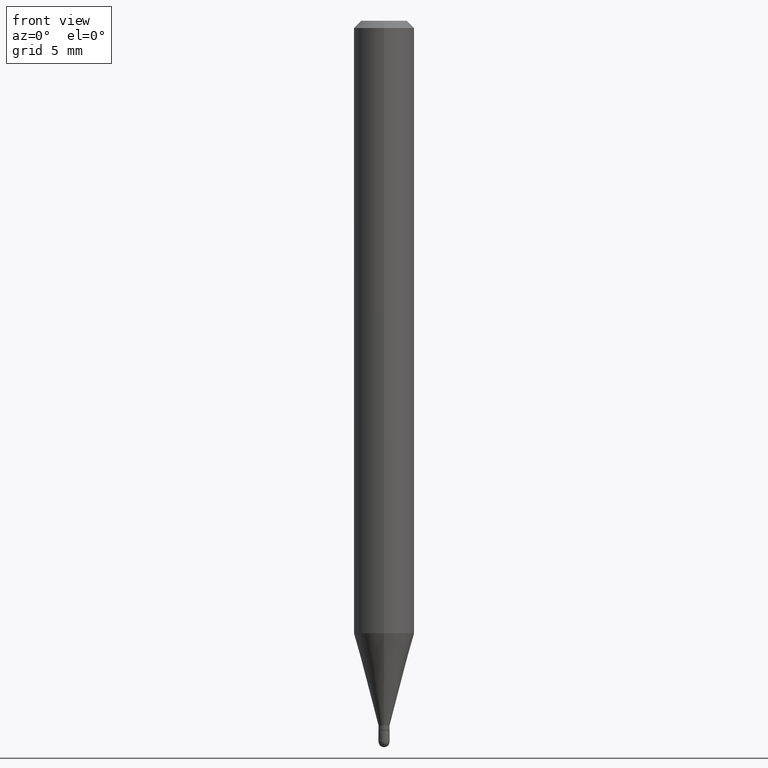
[diagram: clean part render]
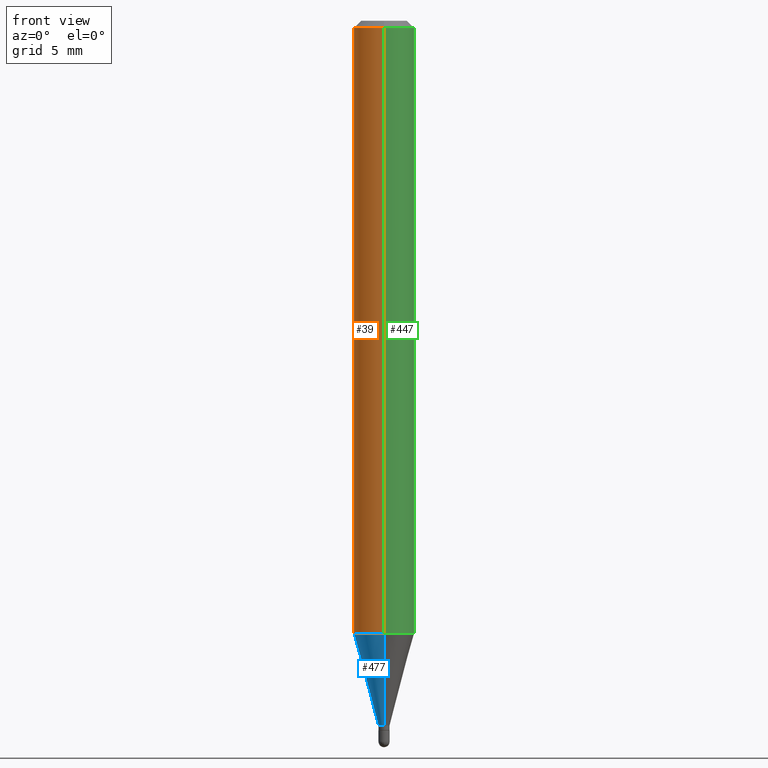
[diagram: same view with three faces highlighted in distinct colors, each labeled with its STEP entity id]
A machine part, front view with three faces highlighted in distinct colors.
Their STEP definitions:

[orange] entity #39 — the highlighted cylindrical surface (edge-blend (fillet) strip) has radius 1.5875 mm, axis along (-0, 0, 1).
#19 = AXIS2_PLACEMENT_3D ( 'NONE', #390, #43, #205 ) ;
#29 = CARTESIAN_POINT ( 'NONE',  ( 4.440892098500625669E-16, 0.06250000000000000000, -2.182181502393698939E-16 ) ) ;
#31 = DIRECTION ( 'NONE',  ( -6.982962677686265922E-15, -1.000000000000000000, 4.370956789862821150E-15 ) ) ;
#39 = ADVANCED_FACE ( 'NONE', ( #433 ), #86, .T. ) ;
#42 = CARTESIAN_POINT ( 'NONE',  ( -4.364351673553916201E-16, -0.06250000000000000000, 2.182181502393698939E-16 ) ) ;
#43 = DIRECTION ( 'NONE',  ( -2.445462476138705994E-29, 3.491490403829918303E-15, 1.000000000000000000 ) ) ;
#75 = CARTESIAN_POINT ( 'NONE',  ( -4.364351673553912750E-16, -0.06250000000000005551, -0.01499999999999979128 ) ) ;
#86 = CYLINDRICAL_SURFACE ( 'NONE', #19, 0.06250000000000000000 ) ;
#88 = CIRCLE ( 'NONE', #126, 0.06250000000000000000 ) ;
#103 = VERTEX_POINT ( 'NONE', #340 ) ;
#107 = EDGE_CURVE ( 'NONE', #404, #103, #422, .T. ) ;
#126 = AXIS2_PLACEMENT_3D ( 'NONE', #234, #378, #31 ) ;
#129 = CARTESIAN_POINT ( 'NONE',  ( 4.440892098500932831E-16, 0.06249999999999557992, -1.264665408813988146 ) ) ;
#133 = CIRCLE ( 'NONE', #507, 0.06250000000000000000 ) ;
#147 = CARTESIAN_POINT ( 'NONE',  ( 3.668193714208060812E-31, -5.237235605744880487E-17, -0.01500000000000000812 ) ) ;
#152 = DIRECTION ( 'NONE',  ( -2.445462476138705994E-29, 3.491490403829918303E-15, 1.000000000000000000 ) ) ;
#164 = EDGE_CURVE ( 'NONE', #103, #190, #133, .T. ) ;
#190 = VERTEX_POINT ( 'NONE', #75 ) ;
#195 = EDGE_CURVE ( 'NONE', #404, #336, #88, .T. ) ;
#205 = DIRECTION ( 'NONE',  ( -6.982962677686265922E-15, -1.000000000000000000, 3.491490403829918303E-15 ) ) ;
#234 = CARTESIAN_POINT ( 'NONE',  ( 3.092691802125223590E-29, -4.415567138929678852E-15, -1.264665408813987924 ) ) ;
#236 = DIRECTION ( 'NONE',  ( -6.982962677686265922E-15, -1.000000000000000000, 3.483106191921935554E-15 ) ) ;
#246 = VECTOR ( 'NONE', #152, 39.37007874015748143 ) ;
#248 = CARTESIAN_POINT ( 'NONE',  ( -4.364351673553607559E-16, -0.06250000000000441314, -1.264665408813987479 ) ) ;
#329 = EDGE_CURVE ( 'NONE', #336, #190, #389, .T. ) ;
#336 = VERTEX_POINT ( 'NONE', #248 ) ;
#340 = CARTESIAN_POINT ( 'NONE',  ( 4.440892098500936776E-16, 0.06249999999999993755, -0.01500000000000022669 ) ) ;
#344 = DIRECTION ( 'NONE',  ( -2.445462476138705994E-29, 3.491490403829918303E-15, 1.000000000000000000 ) ) ;
#347 = DIRECTION ( 'NONE',  ( -2.445462476138705994E-29, 3.491490403829918303E-15, 1.000000000000000000 ) ) ;
#362 = EDGE_LOOP ( 'NONE', ( #510, #367, #429, #458 ) ) ;
#367 = ORIENTED_EDGE ( 'NONE', *, *, #195, .T. ) ;
#378 = DIRECTION ( 'NONE',  ( -2.445462476138705994E-29, 3.491490403829918303E-15, 1.000000000000000000 ) ) ;
#389 = LINE ( 'NONE', #42, #400 ) ;
#390 = CARTESIAN_POINT ( 'NONE',  ( 0.000000000000000000, 0.000000000000000000, 0.000000000000000000 ) ) ;
#400 = VECTOR ( 'NONE', #347, 39.37007874015748143 ) ;
#404 = VERTEX_POINT ( 'NONE', #129 ) ;
#422 = LINE ( 'NONE', #29, #246 ) ;
#429 = ORIENTED_EDGE ( 'NONE', *, *, #329, .T. ) ;
#433 = FACE_OUTER_BOUND ( 'NONE', #362, .T. ) ;
#458 = ORIENTED_EDGE ( 'NONE', *, *, #164, .F. ) ;
#507 = AXIS2_PLACEMENT_3D ( 'NONE', #147, #344, #236 ) ;
#510 = ORIENTED_EDGE ( 'NONE', *, *, #107, .F. ) ;

[blue] entity #477 — the highlighted conical surface has half-angle 15 deg.
#5 = DIRECTION ( 'NONE',  ( 1.839019923739600710E-15, 0.2588190451025250138, 0.9659258262890670910 ) ) ;
#11 = VERTEX_POINT ( 'NONE', #237 ) ;
#15 = EDGE_CURVE ( 'NONE', #11, #404, #307, .T. ) ;
#17 = CARTESIAN_POINT ( 'NONE',  ( 3.558147902781818147E-29, -5.080118537572531884E-15, -1.455000000000000293 ) ) ;
#31 = DIRECTION ( 'NONE',  ( -6.982962677686265922E-15, -1.000000000000000000, 4.370956789862821150E-15 ) ) ;
#57 = DIRECTION ( 'NONE',  ( -2.445462476138705994E-29, 3.491490403829918303E-15, 1.000000000000000000 ) ) ;
#83 = EDGE_CURVE ( 'NONE', #494, #336, #232, .T. ) ;
#88 = CIRCLE ( 'NONE', #126, 0.06250000000000000000 ) ;
#114 = CARTESIAN_POINT ( 'NONE',  ( -8.030407079335594572E-17, -0.01150000000000500275, -1.455000000000000293 ) ) ;
#123 = CARTESIAN_POINT ( 'NONE',  ( 8.171241461244653802E-17, 0.01149999999999484421, -1.455000000000000293 ) ) ;
#126 = AXIS2_PLACEMENT_3D ( 'NONE', #234, #378, #31 ) ;
#129 = CARTESIAN_POINT ( 'NONE',  ( 4.440892098500932831E-16, 0.06249999999999557992, -1.264665408813988146 ) ) ;
#156 = ORIENTED_EDGE ( 'NONE', *, *, #83, .T. ) ;
#159 = ORIENTED_EDGE ( 'NONE', *, *, #15, .F. ) ;
#194 = CARTESIAN_POINT ( 'NONE',  ( 3.558147902781818147E-29, -5.080118537572531884E-15, -1.455000000000000293 ) ) ;
#195 = EDGE_CURVE ( 'NONE', #404, #336, #88, .T. ) ;
#208 = EDGE_CURVE ( 'NONE', #11, #494, #313, .T. ) ;
#232 = LINE ( 'NONE', #114, #353 ) ;
#234 = CARTESIAN_POINT ( 'NONE',  ( 3.092691802125223590E-29, -4.415567138929678852E-15, -1.264665408813987924 ) ) ;
#237 = CARTESIAN_POINT ( 'NONE',  ( 2.629008122312701386E-16, 0.01149999999999484421, -1.455000000000000293 ) ) ;
#242 = ORIENTED_EDGE ( 'NONE', *, *, #195, .F. ) ;
#244 = ORIENTED_EDGE ( 'NONE', *, *, #208, .T. ) ;
#248 = CARTESIAN_POINT ( 'NONE',  ( -4.364351673553607559E-16, -0.06250000000000441314, -1.264665408813987479 ) ) ;
#256 = FACE_OUTER_BOUND ( 'NONE', #386, .T. ) ;
#257 = DIRECTION ( 'NONE',  ( -6.982962677686265133E-15, -1.000000000000000000, 0.000000000000000000 ) ) ;
#270 = DIRECTION ( 'NONE',  ( -2.445462476138705994E-29, 3.491490403829918303E-15, 1.000000000000000000 ) ) ;
#272 = DIRECTION ( 'NONE',  ( -1.807323732225330534E-15, -0.2588190451025182415, 0.9659258262890689783 ) ) ;
#307 = LINE ( 'NONE', #123, #442 ) ;
#311 = AXIS2_PLACEMENT_3D ( 'NONE', #17, #57, #257 ) ;
#313 = CIRCLE ( 'NONE', #461, 0.01149999999999992348 ) ;
#336 = VERTEX_POINT ( 'NONE', #248 ) ;
#353 = VECTOR ( 'NONE', #272, 39.37007874015748143 ) ;
#364 = CONICAL_SURFACE ( 'NONE', #311, 0.01149999999999992348, 0.2617993877991502960 ) ;
#378 = DIRECTION ( 'NONE',  ( -2.445462476138705994E-29, 3.491490403829918303E-15, 1.000000000000000000 ) ) ;
#386 = EDGE_LOOP ( 'NONE', ( #159, #244, #156, #242 ) ) ;
#396 = CARTESIAN_POINT ( 'NONE',  ( -8.030407079335594572E-17, -0.01150000000000500275, -1.455000000000000293 ) ) ;
#404 = VERTEX_POINT ( 'NONE', #129 ) ;
#424 = DIRECTION ( 'NONE',  ( -6.982962677686265133E-15, -1.000000000000000000, 0.000000000000000000 ) ) ;
#442 = VECTOR ( 'NONE', #5, 39.37007874015748143 ) ;
#461 = AXIS2_PLACEMENT_3D ( 'NONE', #194, #270, #424 ) ;
#477 = ADVANCED_FACE ( 'NONE', ( #256 ), #364, .T. ) ;
#494 = VERTEX_POINT ( 'NONE', #396 ) ;

[green] entity #447 — the highlighted cylindrical surface (edge-blend (fillet) strip) has radius 1.5875 mm, axis along (-0, 0, 1).
#29 = CARTESIAN_POINT ( 'NONE',  ( 4.440892098500625669E-16, 0.06250000000000000000, -2.182181502393698939E-16 ) ) ;
#42 = CARTESIAN_POINT ( 'NONE',  ( -4.364351673553916201E-16, -0.06250000000000000000, 2.182181502393698939E-16 ) ) ;
#45 = CIRCLE ( 'NONE', #435, 0.06250000000000000000 ) ;
#49 = CARTESIAN_POINT ( 'NONE',  ( 0.000000000000000000, 0.000000000000000000, 0.000000000000000000 ) ) ;
#75 = CARTESIAN_POINT ( 'NONE',  ( -4.364351673553912750E-16, -0.06250000000000005551, -0.01499999999999979128 ) ) ;
#103 = VERTEX_POINT ( 'NONE', #340 ) ;
#107 = EDGE_CURVE ( 'NONE', #404, #103, #422, .T. ) ;
#122 = DIRECTION ( 'NONE',  ( -2.445462476138705994E-29, 3.491490403829918303E-15, 1.000000000000000000 ) ) ;
#129 = CARTESIAN_POINT ( 'NONE',  ( 4.440892098500932831E-16, 0.06249999999999557992, -1.264665408813988146 ) ) ;
#152 = DIRECTION ( 'NONE',  ( -2.445462476138705994E-29, 3.491490403829918303E-15, 1.000000000000000000 ) ) ;
#165 = DIRECTION ( 'NONE',  ( -2.445462476138705994E-29, 3.491490403829918303E-15, 1.000000000000000000 ) ) ;
#168 = DIRECTION ( 'NONE',  ( -6.982962677686265922E-15, -1.000000000000000000, 3.483106191921935554E-15 ) ) ;
#171 = DIRECTION ( 'NONE',  ( -2.445462476138705994E-29, 3.491490403829918303E-15, 1.000000000000000000 ) ) ;
#185 = CIRCLE ( 'NONE', #196, 0.06250000000000000000 ) ;
#190 = VERTEX_POINT ( 'NONE', #75 ) ;
#196 = AXIS2_PLACEMENT_3D ( 'NONE', #203, #165, #316 ) ;
#199 = ORIENTED_EDGE ( 'NONE', *, *, #345, .T. ) ;
#203 = CARTESIAN_POINT ( 'NONE',  ( 3.092691802125223590E-29, -4.415567138929678852E-15, -1.264665408813987924 ) ) ;
#241 = EDGE_CURVE ( 'NONE', #190, #103, #45, .T. ) ;
#246 = VECTOR ( 'NONE', #152, 39.37007874015748143 ) ;
#248 = CARTESIAN_POINT ( 'NONE',  ( -4.364351673553607559E-16, -0.06250000000000441314, -1.264665408813987479 ) ) ;
#286 = ORIENTED_EDGE ( 'NONE', *, *, #241, .F. ) ;
#316 = DIRECTION ( 'NONE',  ( -6.982962677686265922E-15, -1.000000000000000000, 4.370956789862821150E-15 ) ) ;
#328 = CYLINDRICAL_SURFACE ( 'NONE', #451, 0.06250000000000000000 ) ;
#329 = EDGE_CURVE ( 'NONE', #336, #190, #389, .T. ) ;
#336 = VERTEX_POINT ( 'NONE', #248 ) ;
#340 = CARTESIAN_POINT ( 'NONE',  ( 4.440892098500936776E-16, 0.06249999999999993755, -0.01500000000000022669 ) ) ;
#345 = EDGE_CURVE ( 'NONE', #336, #404, #185, .T. ) ;
#347 = DIRECTION ( 'NONE',  ( -2.445462476138705994E-29, 3.491490403829918303E-15, 1.000000000000000000 ) ) ;
#359 = FACE_OUTER_BOUND ( 'NONE', #470, .T. ) ;
#361 = DIRECTION ( 'NONE',  ( -6.982962677686265922E-15, -1.000000000000000000, 3.491490403829918303E-15 ) ) ;
#373 = ORIENTED_EDGE ( 'NONE', *, *, #107, .T. ) ;
#389 = LINE ( 'NONE', #42, #400 ) ;
#400 = VECTOR ( 'NONE', #347, 39.37007874015748143 ) ;
#404 = VERTEX_POINT ( 'NONE', #129 ) ;
#422 = LINE ( 'NONE', #29, #246 ) ;
#427 = CARTESIAN_POINT ( 'NONE',  ( 3.668193714208060812E-31, -5.237235605744880487E-17, -0.01500000000000000812 ) ) ;
#435 = AXIS2_PLACEMENT_3D ( 'NONE', #427, #122, #168 ) ;
#445 = ORIENTED_EDGE ( 'NONE', *, *, #329, .F. ) ;
#447 = ADVANCED_FACE ( 'NONE', ( #359 ), #328, .T. ) ;
#451 = AXIS2_PLACEMENT_3D ( 'NONE', #49, #171, #361 ) ;
#470 = EDGE_LOOP ( 'NONE', ( #199, #373, #286, #445 ) ) ;